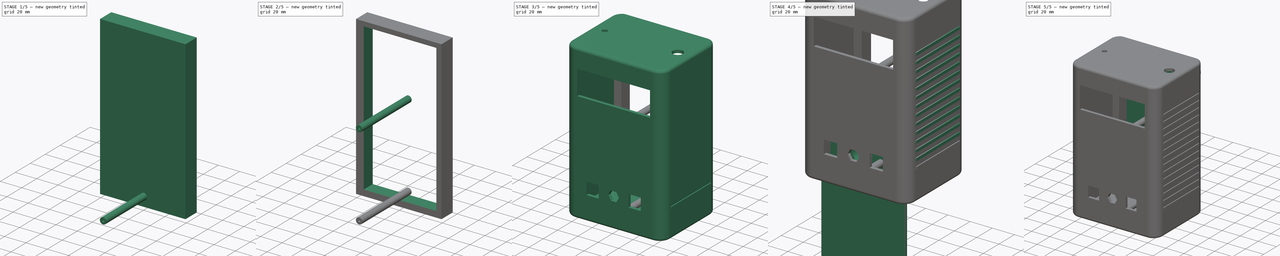
[diagram: build sequence overview — one tinted view per stage of 5, left to right]
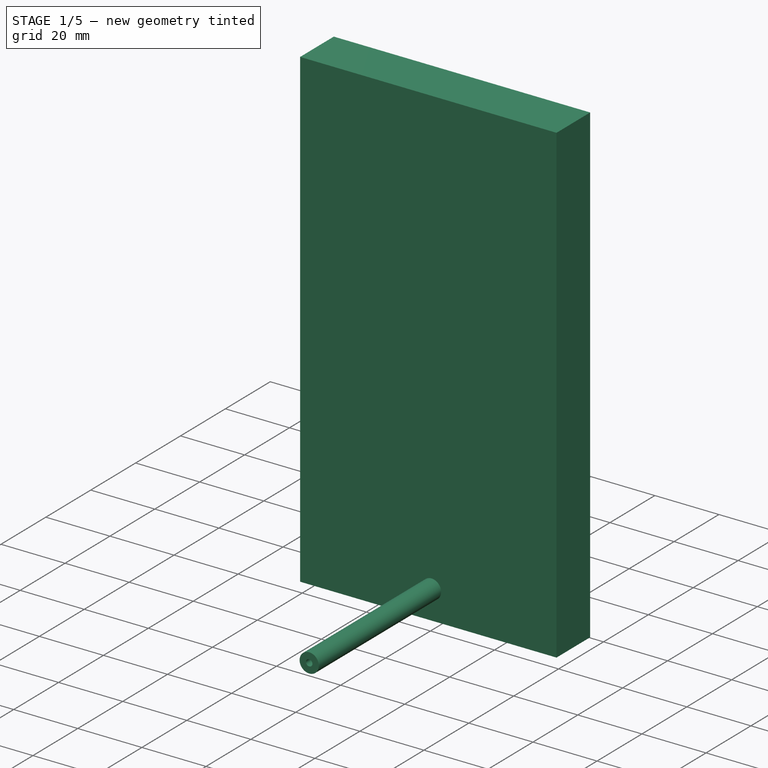
[diagram: stage 1 of 5 — iso view after this stage's code; geometry added in this stage tinted green]
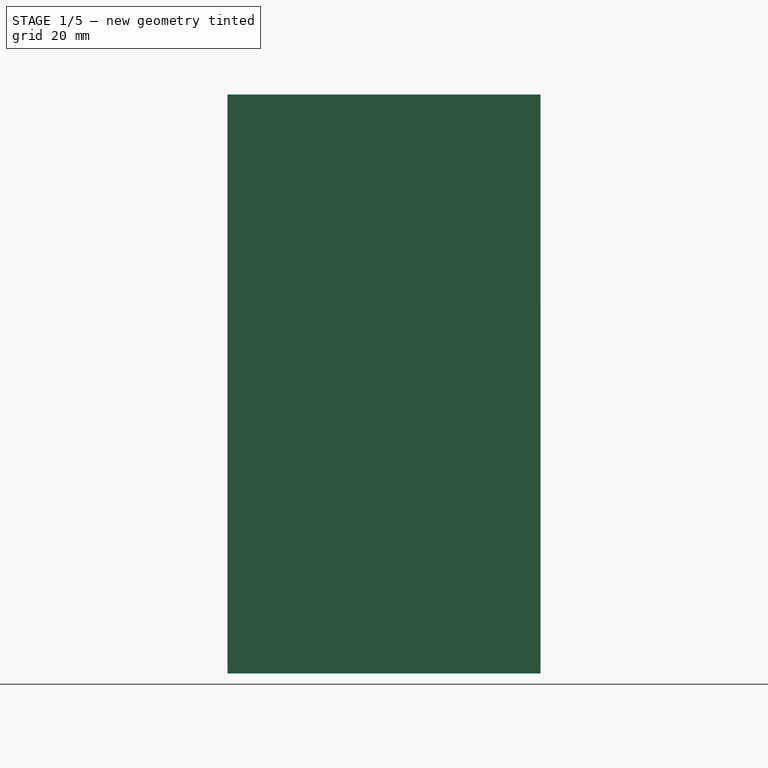
[diagram: stage 1 of 5 — front view after this stage's code; geometry added in this stage tinted green]
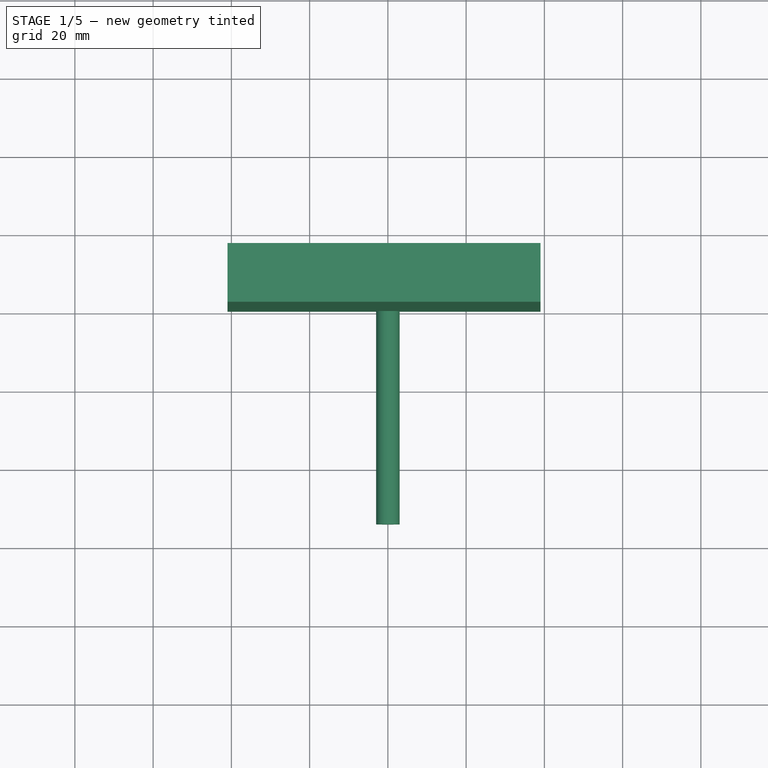
[diagram: stage 1 of 5 — top view after this stage's code; geometry added in this stage tinted green]
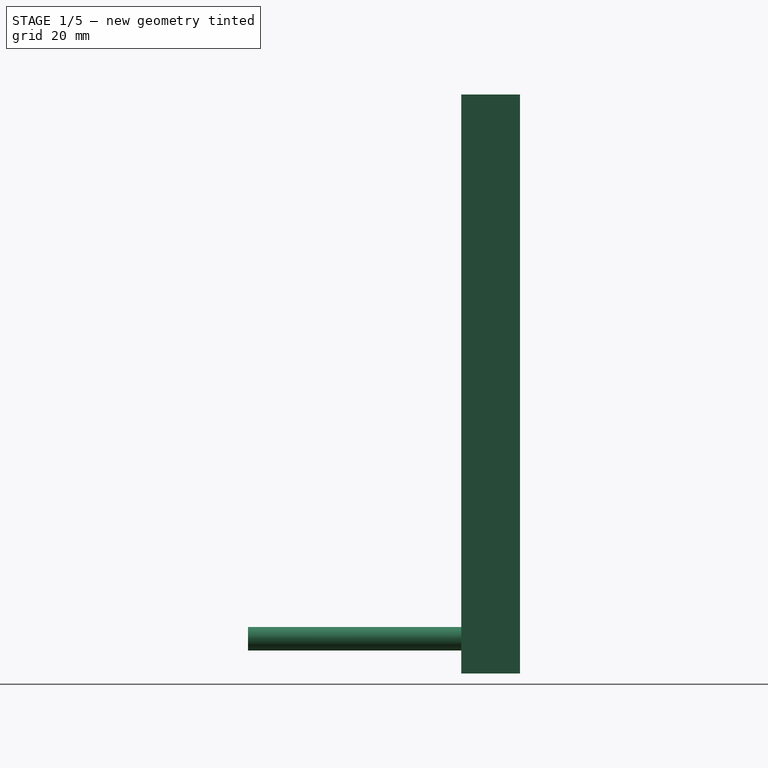
[diagram: stage 1 of 5 — right view after this stage's code; geometry added in this stage tinted green]
FCSTD DOCUMENT  (FreeCAD 0.21R33771 (Git))
Label: BreathAnalyzer
License: All rights reserved
LicenseURL: http://en.wikipedia.org/wiki/All_rights_reserved
objects: Sketcher::SketchObject×15, PartDesign::Pad×11, Part::Cut×6, Part::Cylinder×6, PartDesign::Body×5, PartDesign::Pocket×4, Part::MultiFuse×2, PartDesign::Thickness×1, PartDesign::LinearPattern×1, Part::Fuse×1
note: 68 computed .brp shape members not serialized (recipe doc carries the construction recipe); baked Part::Feature solids carry a one-line shape summary decoded from their .brp

FEATURE [PartDesign::Body] Body001  label="Mouthpiece"
  Group = -> [Sketch010,Pad007,Sketch011,Pad008,Sketch012,Pocket002,Sketch013,Pad009,Sketch014,Pad010,Sketch015,Pad011,Sketch016,Pocket003]
  Origin = -> Origin001
  Placement = pos=(17,35.5,97) rot=(-1,-1,1;0rad)
  Tip = -> Pocket003
FEATURE [Sketcher::SketchObject] Sketch017
  FullyConstrained = false
  MapMode = 5
  Placement = pos=(0,0,0) rot=(1,0,0;1.5708rad)
  Support = -> [XZ_Plane002]
  sketch-geometry (4):
    g0: LineSegment StartX=22.0064 StartY=49.1118 StartZ=0 EndX=-57.9936 EndY=49.1118 EndZ=0
    g1: LineSegment StartX=-57.9936 StartY=49.1118 StartZ=0 EndX=-57.9936 EndY=-98.8882 EndZ=0
    g2: LineSegment StartX=-57.9936 StartY=-98.8882 StartZ=0 EndX=22.0064 EndY=-98.8882 EndZ=0
    g3: LineSegment StartX=22.0064 StartY=-98.8882 StartZ=0 EndX=22.0064 EndY=49.1118 EndZ=0
  constraints (10):
    c: Coincident(g0,g1)
    c: Coincident(g1,g2)
    c: Coincident(g2,g3)
    c: Coincident(g3,g0)
    c: Horizontal(g0)
    c: Horizontal(g2)
    c: Vertical(g1)
    c: Vertical(g3)
    c: DistanceX(g0,g0) = 80
    c: DistanceY(g1,g1) = 148
FEATURE [PartDesign::Pad] Pad012
  Direction = (0,-1,-2e-16)
  Length = 15
  Length2 = 10
  Placement = pos=(0,0,0) rot=(1,0,0;1.5708rad)
  Profile = -> Sketch017
  ReferenceAxis = -> Sketch017 [N_Axis]
  Type = 0
FEATURE [PartDesign::Body] Body002  label="soporteTapa"
  Group = -> [Sketch017,Pad012]
  Origin = -> Origin002
  Placement = pos=(17,35.5,97) rot=(-1,-1,1;0rad)
  Tip = -> Pad012
FEATURE [Sketcher::SketchObject] Sketch018
  FullyConstrained = false
  MapMode = 5
  Placement = pos=(0,0,0) rot=(1,0,0;1.5708rad)
  Support = -> [XZ_Plane003]
  sketch-geometry (4):
    g0: LineSegment StartX=21.3476 StartY=48.744 StartZ=0 EndX=-53.6524 EndY=48.744 EndZ=0
    g1: LineSegment StartX=-53.6524 StartY=48.744 StartZ=0 EndX=-53.6524 EndY=-96.256 EndZ=0
    g2: LineSegment StartX=-53.6524 StartY=-96.256 StartZ=0 EndX=21.3476 EndY=-96.256 EndZ=0
    g3: LineSegment StartX=21.3476 StartY=-96.256 StartZ=0 EndX=21.3476 EndY=48.744 EndZ=0
  constraints (10):
    c: Coincident(g0,g1)
    c: Coincident(g1,g2)
    c: Coincident(g2,g3)
    c: Coincident(g3,g0)
    c: Horizontal(g0)
    c: Horizontal(g2)
    c: Vertical(g1)
    c: Vertical(g3)
    c: DistanceX(g0,g0) = 75
    c: DistanceY(g1,g1) = 145
FEATURE [PartDesign::Pad] Pad013
  Direction = (0,-1,2e-16)
  Length = 3
  Length2 = 10
  Placement = pos=(0,0,0) rot=(1,0,0;1.5708rad)
  Profile = -> Sketch018
  ReferenceAxis = -> Sketch018 [N_Axis]
  Type = 0
FEATURE [PartDesign::Body] Body004  label="Mold"
  Group = -> [Sketch019,Pad014]
  Origin = -> Origin004
  Placement = pos=(18,35.5,97) rot=(-1,-1,-1;0rad)
  Tip = -> Pad014
FEATURE [Part::Cut] Cut
  Base = -> Body002
  Tool = -> Body003
FEATURE [Part::Cylinder] Cylinder
  Angle = 360
  AttacherType = Attacher::AttachEngine3D
  FirstAngle = 0
  Height = 66
  Placement = pos=(0,32,7) rot=(90,0,0;1.5708rad)
  Radius = 3
  SecondAngle = 0
FEATURE [Part::Cylinder] Cylinder001
  Angle = 360
  AttacherType = Attacher::AttachEngine3D
  FirstAngle = 0
  Height = 66
  Placement = pos=(0,32,7) rot=(90,0,0;1.5708rad)
  Radius = 1
  SecondAngle = 0
FEATURE [Part::Cut] Cut002  label="Bolt1"
  Base = -> Cylinder
  Tool = -> Cylinder001
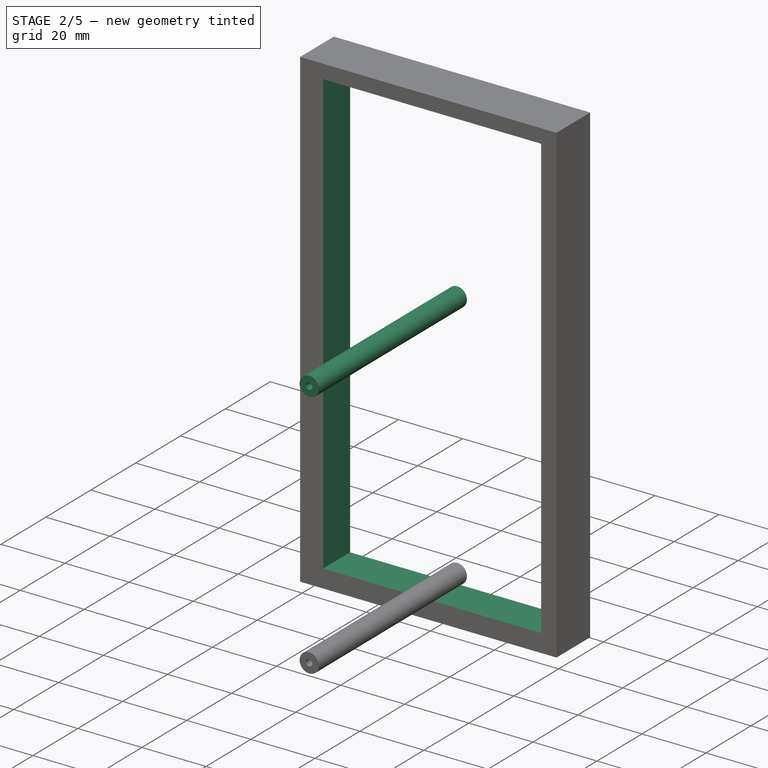
[diagram: stage 2 of 5 — iso view after this stage's code; geometry added in this stage tinted green]
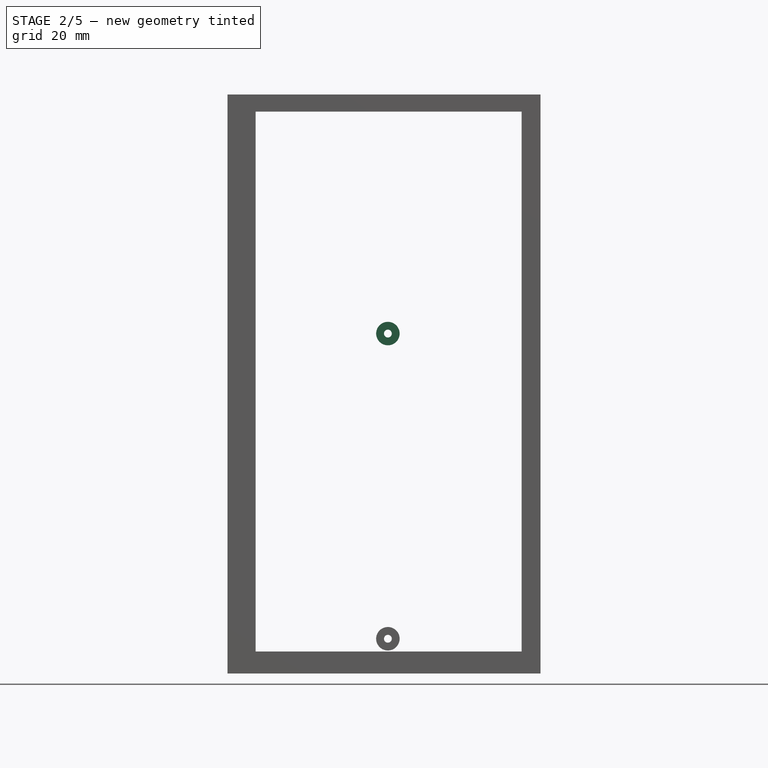
[diagram: stage 2 of 5 — front view after this stage's code; geometry added in this stage tinted green]
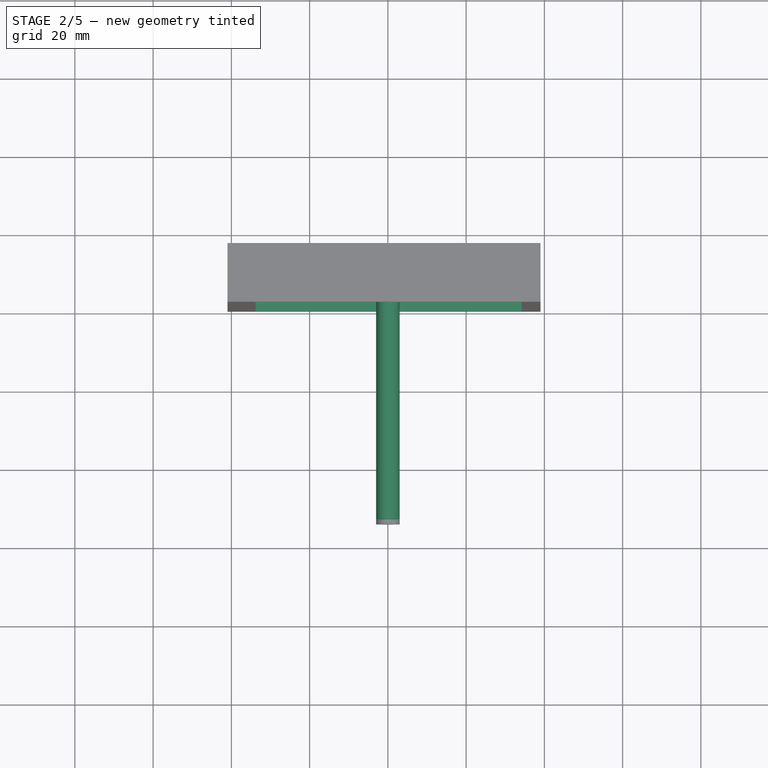
[diagram: stage 2 of 5 — top view after this stage's code; geometry added in this stage tinted green]
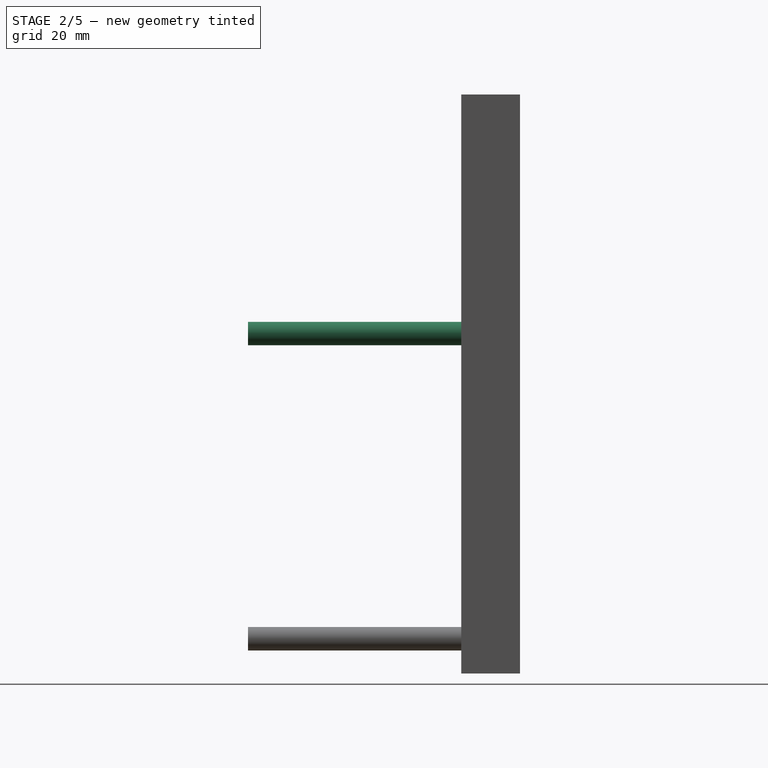
[diagram: stage 2 of 5 — right view after this stage's code; geometry added in this stage tinted green]
FEATURE [PartDesign::Body] Body003  label="boquilla001"
  Group = -> [Sketch018,Pad013]
  Origin = -> Origin003
  Placement = pos=(17,35.5,97) rot=(-1,-1,1;0rad)
  Tip = -> Pad013
FEATURE [Sketcher::SketchObject] Sketch019
  FullyConstrained = false
  MapMode = 5
  Placement = pos=(0,0,0) rot=(1,0,0;1.5708rad)
  Support = -> [XZ_Plane004]
  sketch-geometry (4):
    g0: LineSegment StartX=16.1861 StartY=44.744 StartZ=0 EndX=-51.8139 EndY=44.744 EndZ=0
    g1: LineSegment StartX=-51.8139 StartY=44.744 StartZ=0 EndX=-51.8139 EndY=-93.256 EndZ=0
    g2: LineSegment StartX=-51.8139 StartY=-93.256 StartZ=0 EndX=16.1861 EndY=-93.256 EndZ=0
    g3: LineSegment StartX=16.1861 StartY=-93.256 StartZ=0 EndX=16.1861 EndY=44.744 EndZ=0
  constraints (10):
    c: Coincident(g0,g1)
    c: Coincident(g1,g2)
    c: Coincident(g2,g3)
    c: Coincident(g3,g0)
    c: Horizontal(g0)
    c: Horizontal(g2)
    c: Vertical(g1)
    c: Vertical(g3)
    c: DistanceX(g0,g0) = 68
    c: DistanceY(g1,g1) = 138
FEATURE [PartDesign::Pad] Pad014
  Direction = (0,-1,-2e-16)
  Length = 41
  Length2 = 10
  Placement = pos=(0,0,0) rot=(1,0,0;1.5708rad)
  Profile = -> Sketch019
  ReferenceAxis = -> Sketch019 [N_Axis]
  Type = 0
FEATURE [Part::Cut] Cut001  label="Edge"
  Base = -> Cut
  Tool = -> Body004
FEATURE [Part::Cylinder] Cylinder003
  Angle = 360
  AttacherType = Attacher::AttachEngine3D
  FirstAngle = 0
  Height = 66
  Placement = pos=(0,32,7) rot=(90,0,0;1.5708rad)
  Radius = 3
  SecondAngle = 0
FEATURE [Part::Cylinder] Cylinder004
  Angle = 360
  AttacherType = Attacher::AttachEngine3D
  FirstAngle = 0
  Height = 66
  Placement = pos=(0,32,7) rot=(90,0,0;1.5708rad)
  Radius = 1
  SecondAngle = 0
FEATURE [Part::Cut] Cut003  label="Bolt2"
  Base = -> Cylinder003
  Placement = pos=(0,0,78) rot=(0,0,1;0rad)
  Tool = -> Cylinder004
FEATURE [Part::Fuse] Fusion  label="Edge+bolt1"
  Base = -> Cut001
  Tool = -> Cut002
FEATURE [Part::MultiFuse] Fusion001  label="Edge+bolts"
  Shapes = -> [Cut003,Fusion]
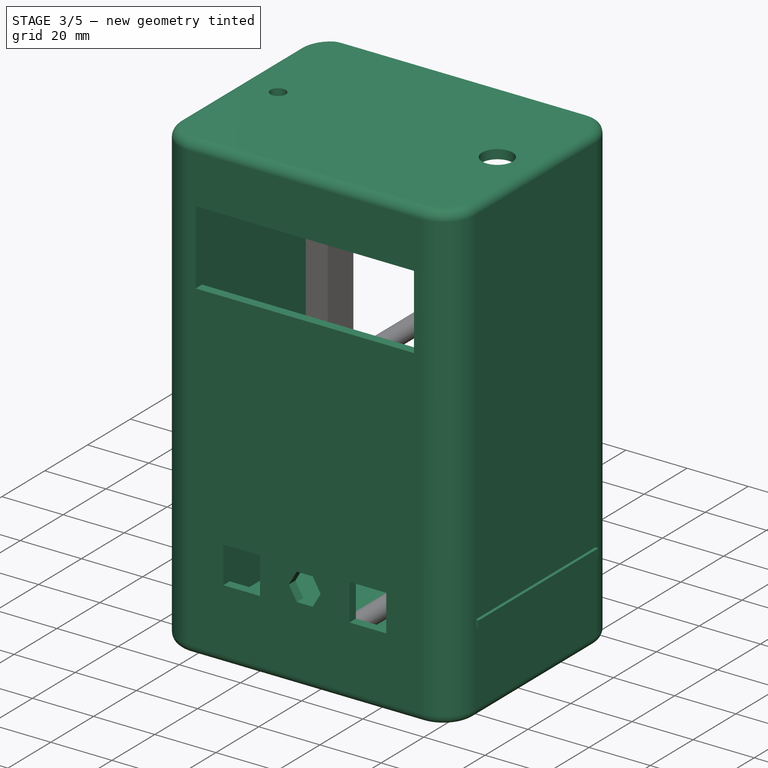
[diagram: stage 3 of 5 — iso view after this stage's code; geometry added in this stage tinted green]
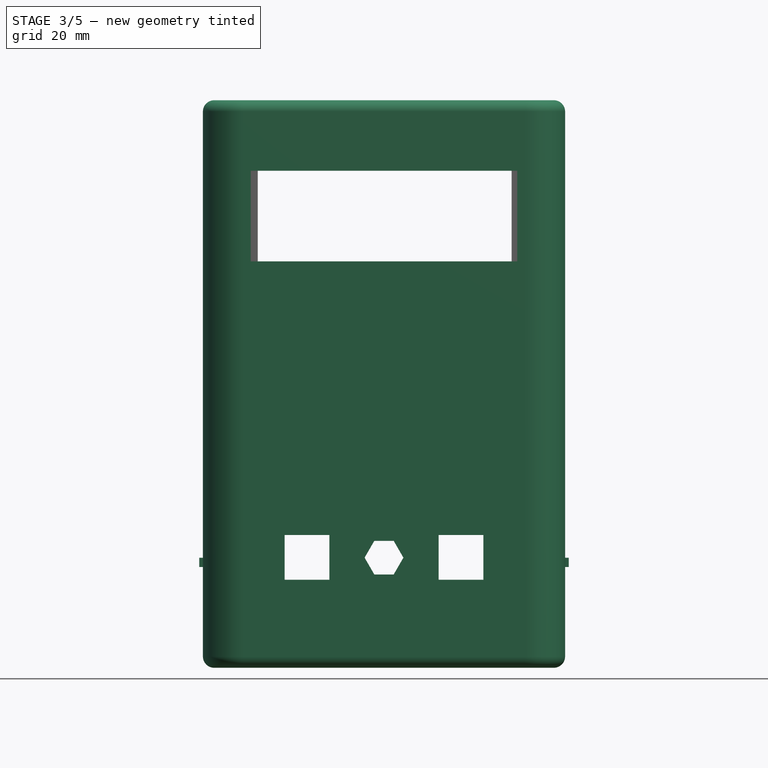
[diagram: stage 3 of 5 — front view after this stage's code; geometry added in this stage tinted green]
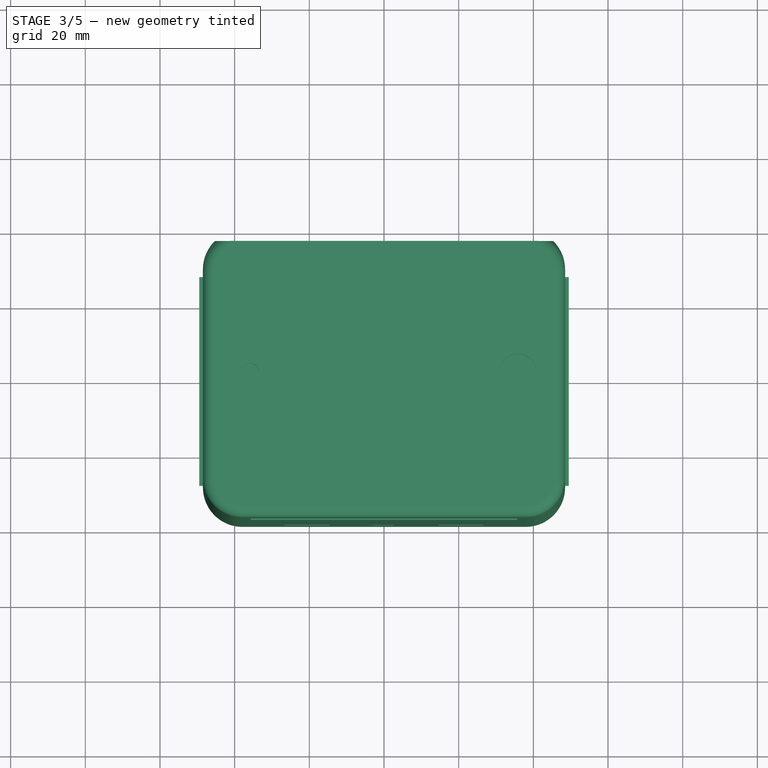
[diagram: stage 3 of 5 — top view after this stage's code; geometry added in this stage tinted green]
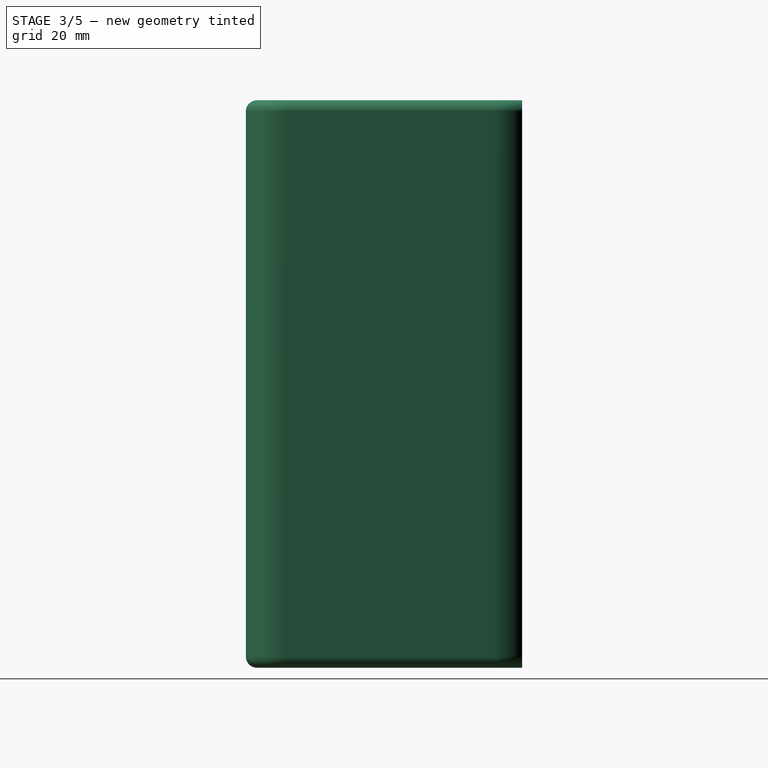
[diagram: stage 3 of 5 — right view after this stage's code; geometry added in this stage tinted green]
FEATURE [Sketcher::SketchObject] Sketch
  FullyConstrained = false
  MapMode = 5
  Support = -> [XY_Plane]
  sketch-geometry (8):
    g0: LineSegment StartX=-37.9419 StartY=35.5 StartZ=0 EndX=37.9419 EndY=35.5 EndZ=0
    g1: LineSegment StartX=45.5 StartY=27.9419 StartZ=0 EndX=45.5 EndY=-27.9419 EndZ=0
    g2: LineSegment StartX=37.9419 StartY=-35.5 StartZ=0 EndX=-37.9419 EndY=-35.5 EndZ=0
    g3: LineSegment StartX=-45.5 StartY=-27.9419 StartZ=0 EndX=-45.5 EndY=27.9419 EndZ=0
    g4: ArcOfCircle CenterX=-37.9419 CenterY=27.9419 CenterZ=0 NormalX=0 NormalY=0 NormalZ=1 AngleXU=0 Radius=7.55806 StartAngle=1.5708 EndAngle=3.14159
    g5: ArcOfCircle CenterX=37.9419 CenterY=27.9419 CenterZ=0 NormalX=0 NormalY=0 NormalZ=1 AngleXU=0 Radius=7.55806 StartAngle=0 EndAngle=1.5708
    g6: ArcOfCircle CenterX=37.9419 CenterY=-27.9419 CenterZ=0 NormalX=0 NormalY=0 NormalZ=1 AngleXU=0 Radius=7.55806 StartAngle=4.71239 EndAngle=6.28319
    g7: ArcOfCircle CenterX=-37.9419 CenterY=-27.9419 CenterZ=0 NormalX=0 NormalY=0 NormalZ=1 AngleXU=0 Radius=7.55806 StartAngle=3.14159 EndAngle=4.71239
  constraints (16):
    c: Horizontal(g2)
    c: Vertical(g3)
    c: Tangent(g0,g4) = 1.5708
    c: Tangent(g3,g4) = 1.5708
    c: Tangent(g0,g5) = 1.5708
    c: Tangent(g1,g5) = 1.5708
    c: Tangent(g1,g6) = 1.5708
    c: Tangent(g2,g6) = 1.5708
    c: Tangent(g2,g7) = 1.5708
    c: Tangent(g3,g7) = 1.5708
    c: DistanceY(g2,g0) = 71
    c: DistanceX(g3,g1) = 91
    c: Symmetric(g4,g5,g-2)
    c: Symmetric(g6,g5,g-1)
    c: Symmetric(g7,g6,g-2)
    c: Horizontal(g0)
FEATURE [PartDesign::Pad] Pad  label="main1"
  Direction = (0,0,1)
  Length = 146
  Length2 = 10
  Profile = -> Sketch
  ReferenceAxis = -> Sketch [N_Axis]
  Type = 0
FEATURE [PartDesign::Thickness] Thickness  label="main2"
  Base = -> Pad [Face3]
  BaseFeature = -> Pad
  Intersection = false
  Join = 0
  Mode = 0
  SupportTransform = false
  Value = 3
FEATURE [Sketcher::SketchObject] Sketch001
  FullyConstrained = false
  MapMode = 5
  Placement = pos=(0,-38.5,0) rot=(1,0,0;1.5708rad)
  Support = -> [Thickness]
  sketch-geometry (19):
    g0: LineSegment StartX=-35.7 StartY=130.13 StartZ=0 EndX=35.7 EndY=130.13 EndZ=0
    g1: LineSegment StartX=35.7 StartY=130.13 StartZ=0 EndX=35.7 EndY=105.83 EndZ=0
    g2: LineSegment StartX=35.7 StartY=105.83 StartZ=0 EndX=-35.7 EndY=105.83 EndZ=0
    g3: LineSegment StartX=-35.7 StartY=105.83 StartZ=0 EndX=-35.7 EndY=130.13 EndZ=0
    g4: LineSegment StartX=-26.6294 StartY=32.5575 StartZ=0 EndX=-14.6294 EndY=32.5575 EndZ=0
    g5: LineSegment StartX=-14.6294 StartY=32.5575 StartZ=0 EndX=-14.6294 EndY=20.5575 EndZ=0
    g6: LineSegment StartX=-14.6294 StartY=20.5575 StartZ=0 EndX=-26.6294 EndY=20.5575 EndZ=0
    g7: LineSegment StartX=-26.6294 StartY=20.5575 StartZ=0 EndX=-26.6294 EndY=32.5575 EndZ=0
    g8: LineSegment StartX=14.6294 StartY=32.5575 StartZ=0 EndX=26.6294 EndY=32.5575 EndZ=0
    g9: LineSegment StartX=26.6294 StartY=32.5575 StartZ=0 EndX=26.6294 EndY=20.5575 EndZ=0
    g10: LineSegment StartX=26.6294 StartY=20.5575 StartZ=0 EndX=14.6294 EndY=20.5575 EndZ=0
    g11: LineSegment StartX=14.6294 StartY=20.5575 StartZ=0 EndX=14.6294 EndY=32.5575 EndZ=0
    g12: LineSegment StartX=2.59808 StartY=30.9874 StartZ=0 EndX=-2.59808 EndY=30.9874 EndZ=0
    g13: LineSegment StartX=-2.59808 StartY=30.9874 StartZ=0 EndX=-5.19615 EndY=26.4874 EndZ=0
    g14: LineSegment StartX=-5.19615 StartY=26.4874 StartZ=0 EndX=-2.59808 EndY=21.9874 EndZ=0
    g15: LineSegment StartX=-2.59808 StartY=21.9874 StartZ=0 EndX=2.59808 EndY=21.9874 EndZ=0
    g16: LineSegment StartX=2.59808 StartY=21.9874 StartZ=0 EndX=5.19615 EndY=26.4874 EndZ=0
    g17: LineSegment StartX=5.19615 StartY=26.4874 StartZ=0 EndX=2.59808 EndY=30.9874 EndZ=0
    g18: Circle CenterX=0 CenterY=26.4874 CenterZ=0 NormalX=0 NormalY=0 NormalZ=1 AngleXU=0 Radius=5.19615
  constraints (46):
    c: Coincident(g0,g1)
    c: Coincident(g1,g2)
    c: Coincident(g2,g3)
    c: Coincident(g3,g0)
    c: Horizontal(g2)
    c: Vertical(g1)
    c: Vertical(g3)
    c: Symmetric(g0,g0,g-2)
    c: DistanceX(g0,g0) = 71.4
    c: DistanceY(g1,g1) = 24.3
    c: Coincident(g4,g5)
    c: Coincident(g5,g6)
    c: Coincident(g6,g7)
    c: Coincident(g7,g4)
    c: Horizontal(g4)
    c: Horizontal(g6)
    c: Vertical(g5)
    c: Vertical(g7)
    c: DistanceX(g6,g6) = 12
    c: Equal(g5,g6)
    c: Coincident(g8,g9)
    c: Coincident(g9,g10)
    c: Coincident(g10,g11)
    c: Coincident(g11,g8)
    c: Horizontal(g8)
    c: Horizontal(g10)
    c: Vertical(g9)
    c: Vertical(g11)
    c: DistanceX(g10,g10) = 12
    c: Equal(g9,g10)
    c: Symmetric(g4,g8,g-2)
    c: Coincident(g12,g13)
    c: Coincident(g13,g14)
    c: Coincident(g14,g15)
    c: Coincident(g15,g16)
    c: Coincident(g16,g17)
    c: Coincident(g17,g12)
    c: Equal(g12, g13-g17) x5
    c: PointOnObject(g12,g18)
    c: PointOnObject(g13,g18)
    c: PointOnObject(g14,g18)
    c: PointOnObject(g15,g18)
    c: PointOnObject(g16,g18)
    c: PointOnObject(g17,g18)
    c: PointOnObject(g18,g-2)
    c: DistanceY(g15,g12) = 9
FEATURE [PartDesign::Pocket] Pocket  label="lcd"
  BaseFeature = -> Thickness
  Direction = (0,1,-2e-16)
  Length = 5
  Length2 = 5
  Profile = -> Sketch001
  ReferenceAxis = -> Sketch001 [N_Axis]
  Type = 0
FEATURE [Sketcher::SketchObject] Sketch002
  FullyConstrained = false
  MapMode = 5
  Placement = pos=(0,0,149) rot=(0,0,1;0rad)
  Support = -> [Pocket]
  sketch-geometry (2):
    g0: Circle CenterX=-35.8458 CenterY=0.254305 CenterZ=0 NormalX=0 NormalY=0 NormalZ=1 AngleXU=0 Radius=2.5
    g1: Circle CenterX=35.8458 CenterY=0.254305 CenterZ=0 NormalX=0 NormalY=0 NormalZ=1 AngleXU=0 Radius=5
  constraints (3):
    c: Radius(g1) = 5
    c: Radius(g0) = 2.5
    c: Symmetric(g0,g1,g-2)
FEATURE [PartDesign::Pocket] Pocket001  label="lights"
  BaseFeature = -> Pocket
  Direction = (0,0,-1)
  Length = 5
  Length2 = 5
  Profile = -> Sketch002
  ReferenceAxis = -> Sketch002 [N_Axis]
  Type = 0
FEATURE [Sketcher::SketchObject] Sketch008
  ExternalGeometry = -> [Pocket001]
  FullyConstrained = true
  MapMode = 5
  Placement = pos=(48.5,-6.3e-15,0) rot=(0.57735,0.57735,0.57735;2.0944rad)
  Support = -> [Pocket001]
  sketch-geometry (4):
    g0: LineSegment StartX=-27.9419 StartY=26.47 StartZ=0 EndX=27.9419 EndY=26.47 EndZ=0
    g1: LineSegment StartX=27.9419 StartY=26.47 StartZ=0 EndX=27.9419 EndY=24 EndZ=0
    g2: LineSegment StartX=27.9419 StartY=24 StartZ=0 EndX=-27.9419 EndY=24 EndZ=0
    g3: LineSegment StartX=-27.9419 StartY=24 StartZ=0 EndX=-27.9419 EndY=26.47 EndZ=0
  constraints (12):
    c: Coincident(g0,g1)
    c: Coincident(g1,g2)
    c: Coincident(g2,g3)
    c: Coincident(g3,g0)
    c: Horizontal(g0)
    c: Horizontal(g2)
    c: Vertical(g1)
    c: Vertical(g3)
    c: PointOnObject(g0,g-4)
    c: PointOnObject(g1,g-3)
    c: DistanceY(g1,g1) = 2.47
    c: DistanceY(g-3,g1) = 24
FEATURE [PartDesign::Pad] Pad005  label="keyhole"
  BaseFeature = -> Pocket001
  Direction = (1,-1e-16,-1e-16)
  Length = 1
  Length2 = 10
  Profile = -> Sketch008
  ReferenceAxis = -> Sketch008 [N_Axis]
  Type = 0
FEATURE [Sketcher::SketchObject] Sketch009
  ExternalGeometry = -> [Pad005]
  FullyConstrained = true
  MapMode = 5
  Placement = pos=(-48.5,0,0) rot=(0.57735,-0.57735,-0.57735;2.0944rad)
  Support = -> [Pad005]
  sketch-geometry (4):
    g0: LineSegment StartX=-27.9419 StartY=26.47 StartZ=0 EndX=27.9419 EndY=26.47 EndZ=0
    g1: LineSegment StartX=27.9419 StartY=26.47 StartZ=0 EndX=27.9419 EndY=24 EndZ=0
    g2: LineSegment StartX=27.9419 StartY=24 StartZ=0 EndX=-27.9419 EndY=24 EndZ=0
    g3: LineSegment StartX=-27.9419 StartY=24 StartZ=0 EndX=-27.9419 EndY=26.47 EndZ=0
  constraints (12):
    c: Coincident(g0,g1)
    c: Coincident(g1,g2)
    c: Coincident(g2,g3)
    c: Coincident(g3,g0)
    c: Horizontal(g0)
    c: Horizontal(g2)
    c: Vertical(g1)
    c: Vertical(g3)
    c: PointOnObject(g0,g-4)
    c: PointOnObject(g1,g-3)
    c: DistanceY(g1,g1) = 2.47
    c: DistanceY(g-3,g1) = 24
FEATURE [PartDesign::Pad] Pad006  label="keyhole2"
  BaseFeature = -> Pad005
  Direction = (-1,0,0)
  Length = 1
  Length2 = 10
  Profile = -> Sketch009
  ReferenceAxis = -> Sketch009 [N_Axis]
  Type = 0
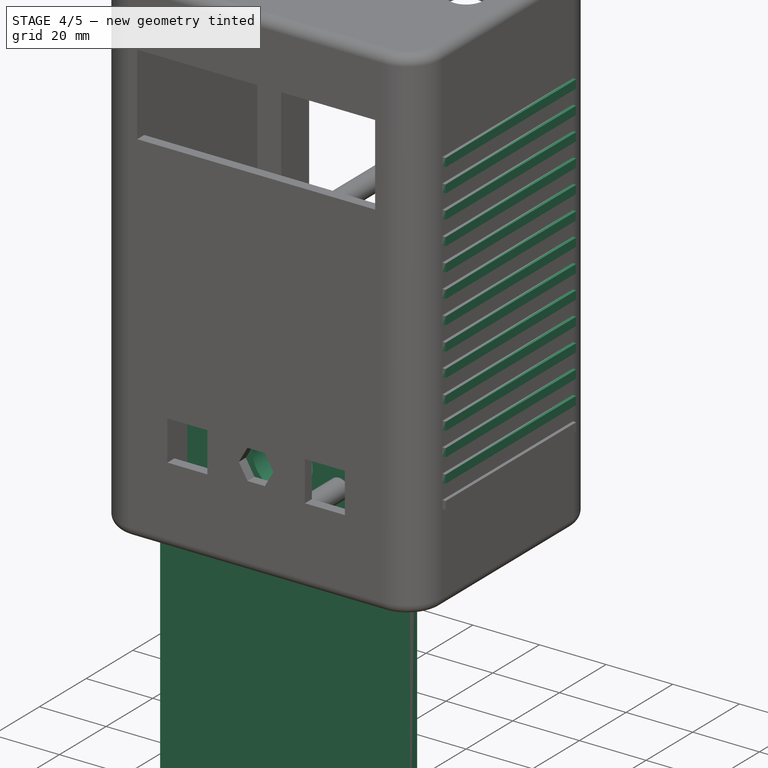
[diagram: stage 4 of 5 — iso view after this stage's code; geometry added in this stage tinted green]
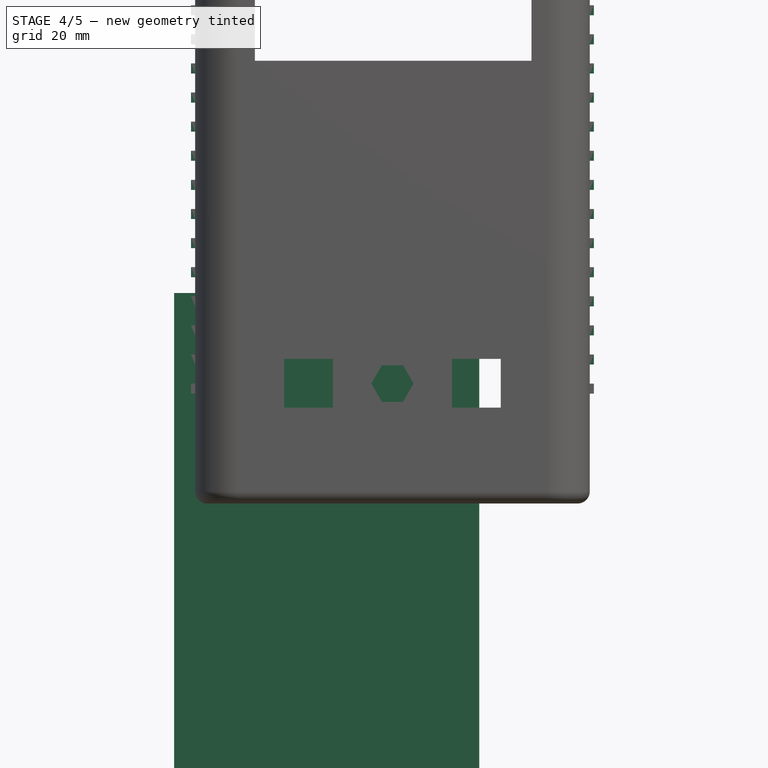
[diagram: stage 4 of 5 — front view after this stage's code; geometry added in this stage tinted green]
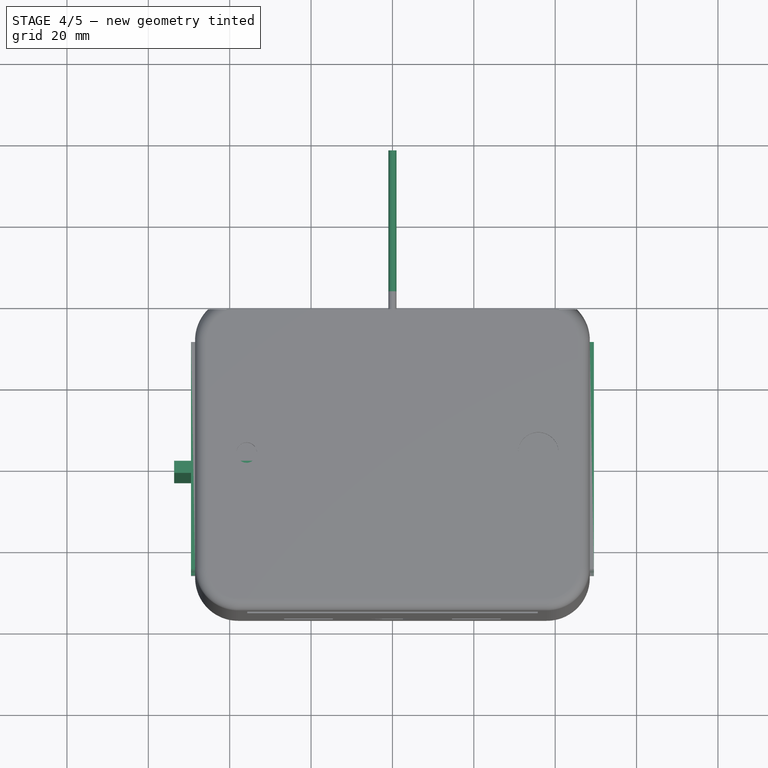
[diagram: stage 4 of 5 — top view after this stage's code; geometry added in this stage tinted green]
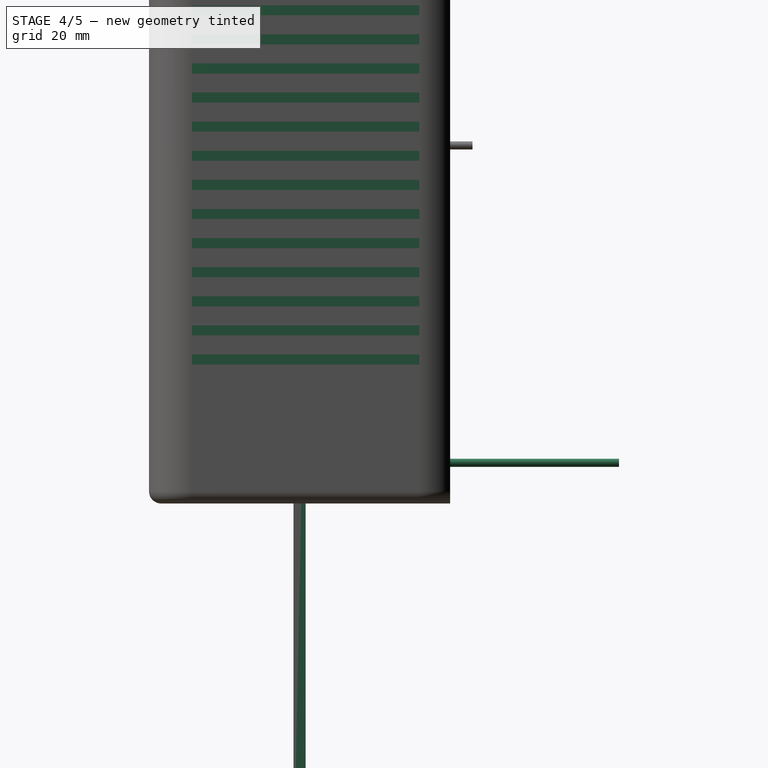
[diagram: stage 4 of 5 — right view after this stage's code; geometry added in this stage tinted green]
FEATURE [PartDesign::LinearPattern] LinearPattern  label="MultiplicadorRanuras"
  BaseFeature = -> Pad006
  Direction = -> Sketch008 [V_Axis]
  Length = 93
  Occurrences = 14
  Originals = -> [Pad005,Pad006]
FEATURE [PartDesign::Body] Body  label="main_body"
  Group = -> [Sketch,Pad,Thickness,Sketch001,Pocket,Sketch002,Pocket001,Sketch008,Pad005,Sketch009,Pad006,LinearPattern]
  Origin = -> Origin
  Tip = -> LinearPattern
FEATURE [Sketcher::SketchObject] Sketch010
  FullyConstrained = false
  MapMode = 5
  Placement = pos=(0,0,0) rot=(1,0,0;1.5708rad)
  Support = -> [XZ_Plane001]
  sketch-geometry (4):
    g0: LineSegment StartX=21.3476 StartY=48.744 StartZ=0 EndX=-53.6524 EndY=48.744 EndZ=0
    g1: LineSegment StartX=-53.6524 StartY=48.744 StartZ=0 EndX=-53.6524 EndY=-96.256 EndZ=0
    g2: LineSegment StartX=-53.6524 StartY=-96.256 StartZ=0 EndX=21.3476 EndY=-96.256 EndZ=0
    g3: LineSegment StartX=21.3476 StartY=-96.256 StartZ=0 EndX=21.3476 EndY=48.744 EndZ=0
  constraints (10):
    c: Coincident(g0,g1)
    c: Coincident(g1,g2)
    c: Coincident(g2,g3)
    c: Coincident(g3,g0)
    c: Horizontal(g0)
    c: Horizontal(g2)
    c: Vertical(g1)
    c: Vertical(g3)
    c: DistanceX(g0,g0) = 75
    c: DistanceY(g1,g1) = 145
FEATURE [PartDesign::Pad] Pad007
  Direction = (0,-1,2e-16)
  Length = 3
  Length2 = 10
  Placement = pos=(0,0,0) rot=(1,0,0;1.5708rad)
  Profile = -> Sketch010
  ReferenceAxis = -> Sketch010 [N_Axis]
  Type = 0
FEATURE [Sketcher::SketchObject] Sketch011
  FullyConstrained = false
  MapMode = 5
  Placement = pos=(0,0,0) rot=(-1,0,0;1.5708rad)
  Support = -> [Pad007]
  sketch-geometry (1):
    g0: Circle CenterX=-16.9303 CenterY=-10.1971 CenterZ=0 NormalX=0 NormalY=0 NormalZ=1 AngleXU=0 Radius=12
  constraints (1):
    c: Radius(g0) = 12
FEATURE [PartDesign::Pad] Pad008
  BaseFeature = -> Pad007
  Direction = (0,1,-2e-16)
  Length = 30
  Length2 = 10
  Placement = pos=(0,0,0) rot=(1,0,0;1.5708rad)
  Profile = -> Sketch011
  ReferenceAxis = -> Sketch011 [N_Axis]
  Type = 0
FEATURE [Sketcher::SketchObject] Sketch012
  ExternalGeometry = -> [Pad008]
  FullyConstrained = true
  MapMode = 5
  Placement = pos=(0,30,-1.33e-14) rot=(-1,0,0;1.5708rad)
  Support = -> [Pad008]
  sketch-geometry (1):
    g0: Circle CenterX=-16.9303 CenterY=-10.1971 CenterZ=0 NormalX=0 NormalY=0 NormalZ=1 AngleXU=0 Radius=9
  constraints (2):
    c: Coincident(g0,g-3)
    c: Radius(g0) = 9
FEATURE [PartDesign::Pocket] Pocket002
  BaseFeature = -> Pad008
  Direction = (0,-1,2e-16)
  Length = 58
  Length2 = 5
  Placement = pos=(0,0,0) rot=(1,0,0;1.5708rad)
  Profile = -> Sketch012
  ReferenceAxis = -> Sketch012 [N_Axis]
  Type = 0
FEATURE [Part::Cylinder] Cylinder007  label="Hole1"
  Angle = 360
  AttacherType = Attacher::AttachEngine3D
  FirstAngle = 0
  Height = 66
  Placement = pos=(0,77,7) rot=(90,0,0;1.5708rad)
  Radius = 1
  SecondAngle = 0
FEATURE [Part::Cylinder] Cylinder008  label="Hole2"
  Angle = 360
  AttacherType = Attacher::AttachEngine3D
  FirstAngle = 0
  Height = 66
  Placement = pos=(0,41,85) rot=(90,0,0;1.5708rad)
  Radius = 1
  SecondAngle = 0
FEATURE [Part::MultiFuse] Fusion002  label="Main_body"
  Shapes = -> [Fusion001,Body]
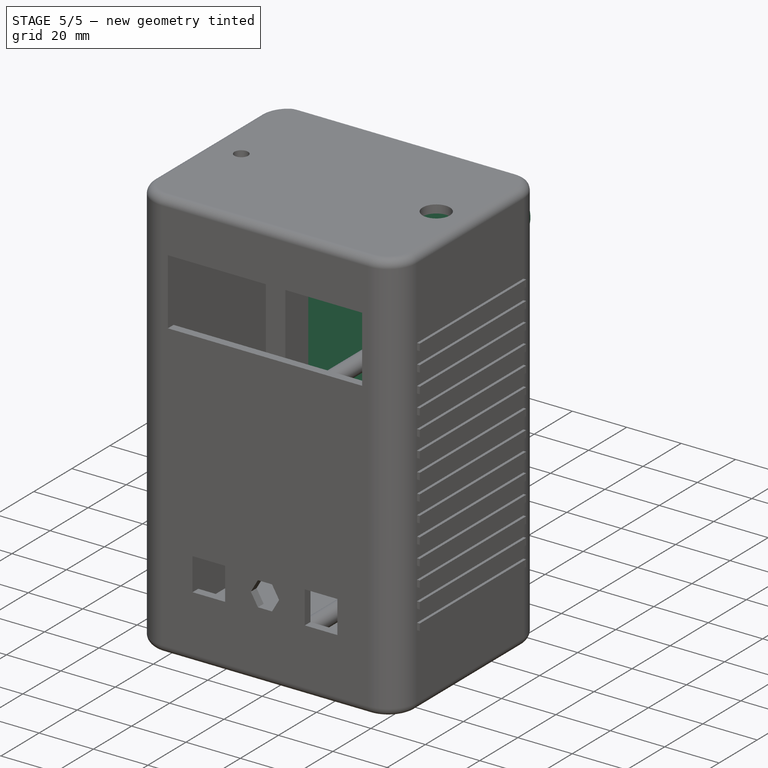
[diagram: stage 5 of 5 — iso view after this stage's code; geometry added in this stage tinted green]
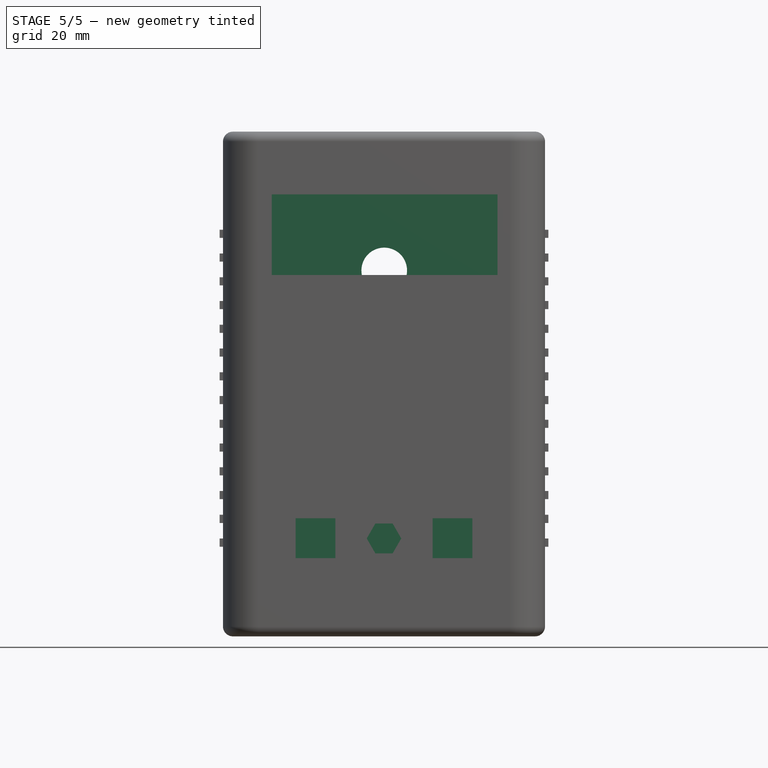
[diagram: stage 5 of 5 — front view after this stage's code; geometry added in this stage tinted green]
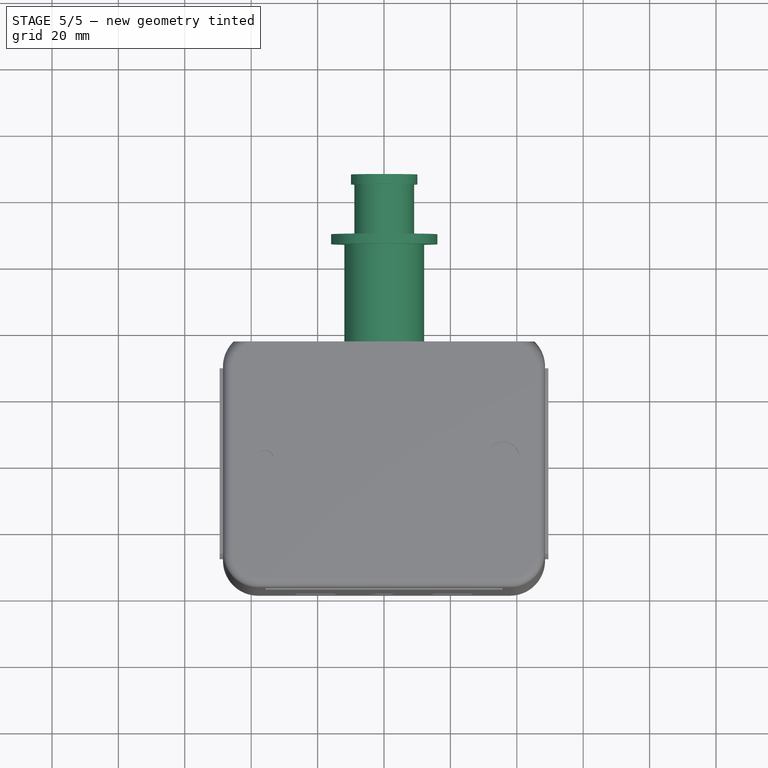
[diagram: stage 5 of 5 — top view after this stage's code; geometry added in this stage tinted green]
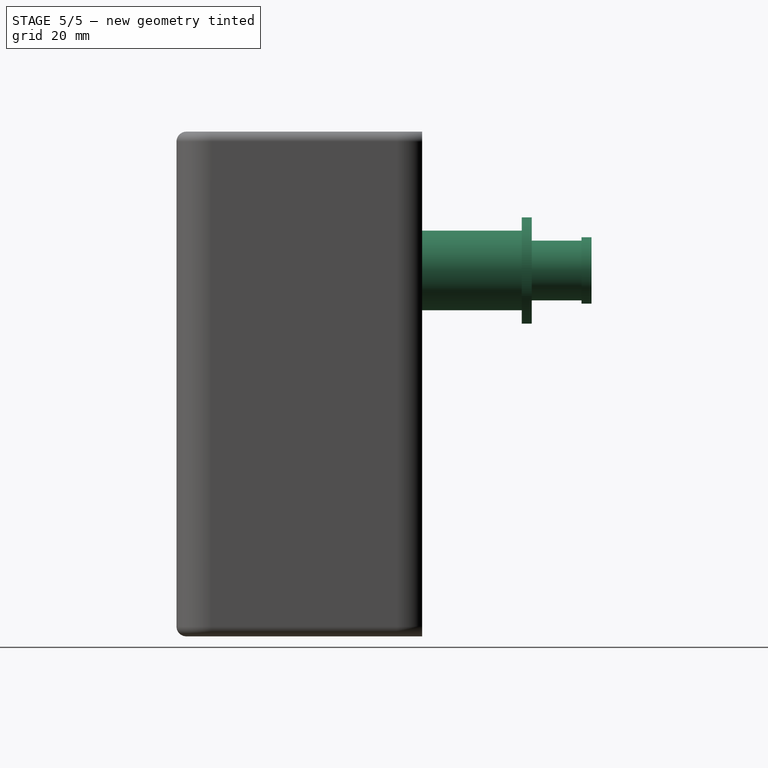
[diagram: stage 5 of 5 — right view after this stage's code; geometry added in this stage tinted green]
FEATURE [Sketcher::SketchObject] Sketch013
  ExternalGeometry = -> [Pocket002]
  FullyConstrained = true
  MapMode = 5
  Placement = pos=(0,30,-1.33e-14) rot=(-1,0,0;1.5708rad)
  Support = -> [Pocket002]
  sketch-geometry (1):
    g0: Circle CenterX=-16.9303 CenterY=-10.1971 CenterZ=0 NormalX=0 NormalY=0 NormalZ=1 AngleXU=0 Radius=16
  constraints (2):
    c: Coincident(g0,g-3)
    c: Radius(g0) = 16
FEATURE [PartDesign::Pad] Pad009
  BaseFeature = -> Pocket002
  Direction = (0,1,-2e-16)
  Length = 3
  Length2 = 10
  Placement = pos=(0,0,0) rot=(1,0,0;1.5708rad)
  Profile = -> Sketch013
  ReferenceAxis = -> Sketch013 [N_Axis]
  Type = 0
FEATURE [Sketcher::SketchObject] Sketch014
  ExternalGeometry = -> [Pad009]
  FullyConstrained = true
  MapMode = 5
  Placement = pos=(0,33,-1.59e-14) rot=(-1,0,0;1.5708rad)
  Support = -> [Pad009]
  sketch-geometry (1):
    g0: Circle CenterX=-16.9303 CenterY=-10.1971 CenterZ=0 NormalX=0 NormalY=0 NormalZ=1 AngleXU=0 Radius=9
  constraints (2):
    c: Coincident(g0,g-3)
    c: Radius(g0) = 9
FEATURE [PartDesign::Pad] Pad010
  BaseFeature = -> Pad009
  Direction = (0,1,-2e-16)
  Length = 15
  Length2 = 10
  Placement = pos=(0,0,0) rot=(1,0,0;1.5708rad)
  Profile = -> Sketch014
  ReferenceAxis = -> Sketch014 [N_Axis]
  Type = 0
FEATURE [Sketcher::SketchObject] Sketch015
  ExternalGeometry = -> [Pad010]
  FullyConstrained = true
  MapMode = 5
  Placement = pos=(1.25e-14,48,-3.27e-14) rot=(-1,0,0;1.5708rad)
  Support = -> [Pad010]
  sketch-geometry (1):
    g0: Circle CenterX=-16.9303 CenterY=-10.1971 CenterZ=0 NormalX=0 NormalY=0 NormalZ=1 AngleXU=0 Radius=10
  constraints (2):
    c: Coincident(g0,g-3)
    c: Radius(g0) = 10
FEATURE [PartDesign::Pad] Pad011
  BaseFeature = -> Pad010
  Direction = (3e-16,1,-4e-16)
  Length = 3
  Length2 = 10
  Placement = pos=(0,0,0) rot=(1,0,0;1.5708rad)
  Profile = -> Sketch015
  ReferenceAxis = -> Sketch015 [N_Axis]
  Type = 0
FEATURE [Sketcher::SketchObject] Sketch016
  ExternalGeometry = -> [Pad011]
  FullyConstrained = false
  MapMode = 5
  Placement = pos=(1.22e-14,51,-3.22e-14) rot=(-1,0,0;1.5708rad)
  Support = -> [Pad011]
  sketch-geometry (1):
    g0: Circle CenterX=-16.9303 CenterY=-10.1971 CenterZ=0 NormalX=0 NormalY=0 NormalZ=1 AngleXU=0 Radius=6.87123
  constraints (1):
    c: Coincident(g0,g-3)
FEATURE [PartDesign::Pocket] Pocket003
  BaseFeature = -> Pad011
  Direction = (-2e-16,-1,4e-16)
  Length = 29
  Length2 = 5
  Placement = pos=(0,0,0) rot=(1,0,0;1.5708rad)
  Profile = -> Sketch016
  ReferenceAxis = -> Sketch016 [N_Axis]
  Type = 0
FEATURE [Part::Cut] Cut004  label="Cover+Hole1"
  Base = -> Body001
  Tool = -> Cylinder007
FEATURE [Part::Cut] Cut005  label="Cover"
  Base = -> Cut004
  Tool = -> Cylinder008
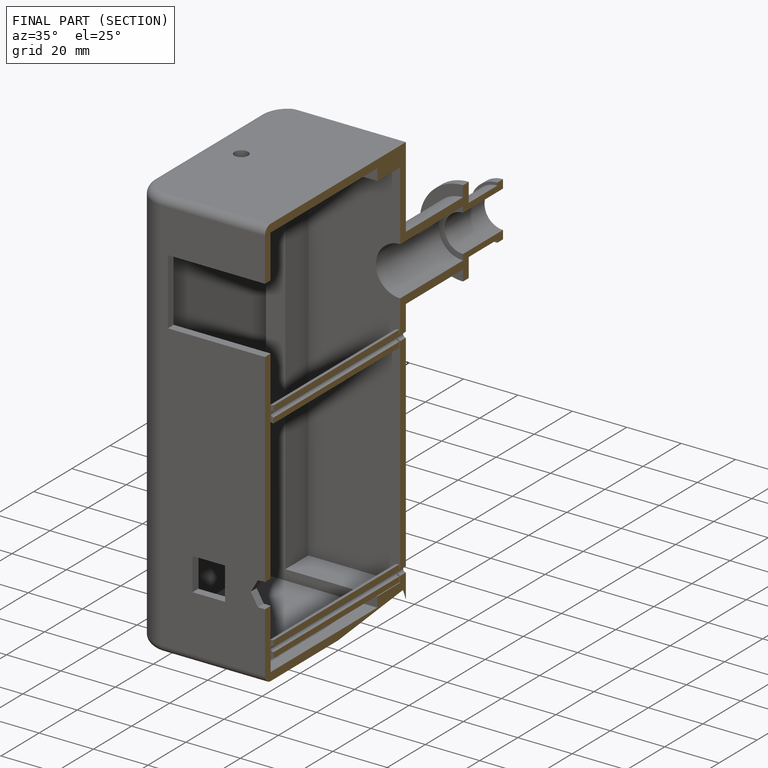
[diagram: finished part — half-section view (interior)]
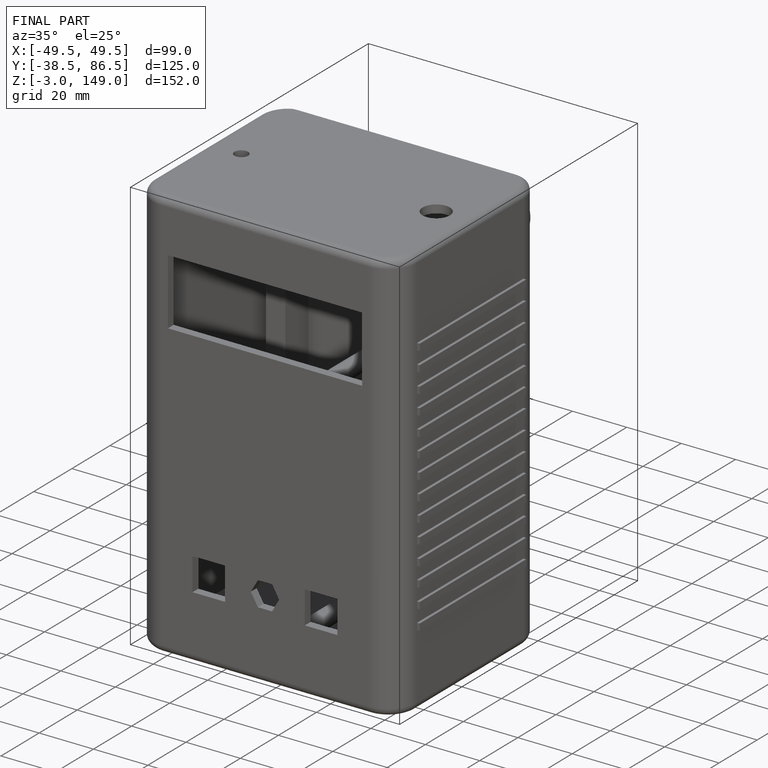
[diagram: finished part — iso view with bounding-box wireframe]
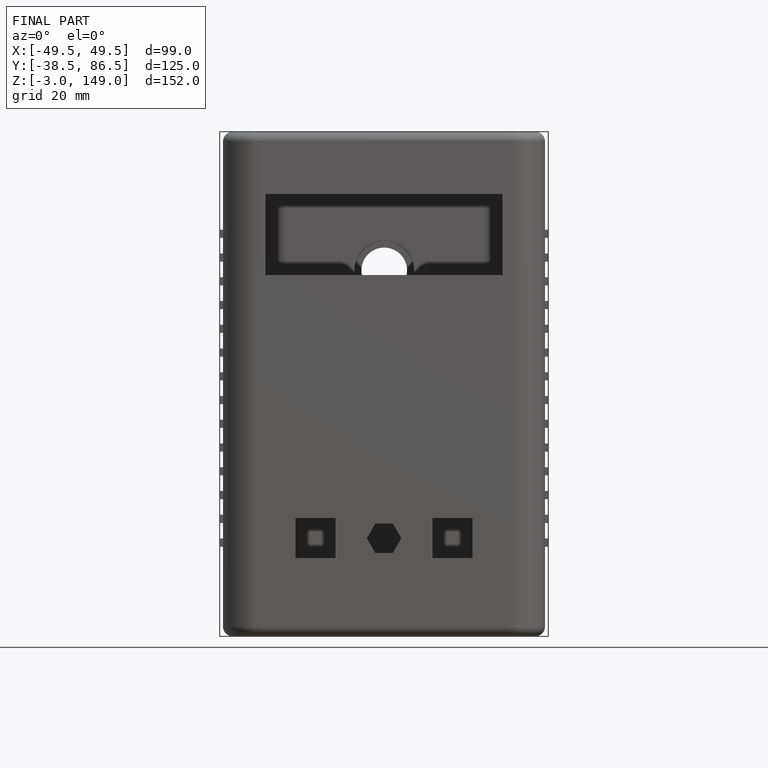
[diagram: finished part — front view with bounding-box wireframe]
